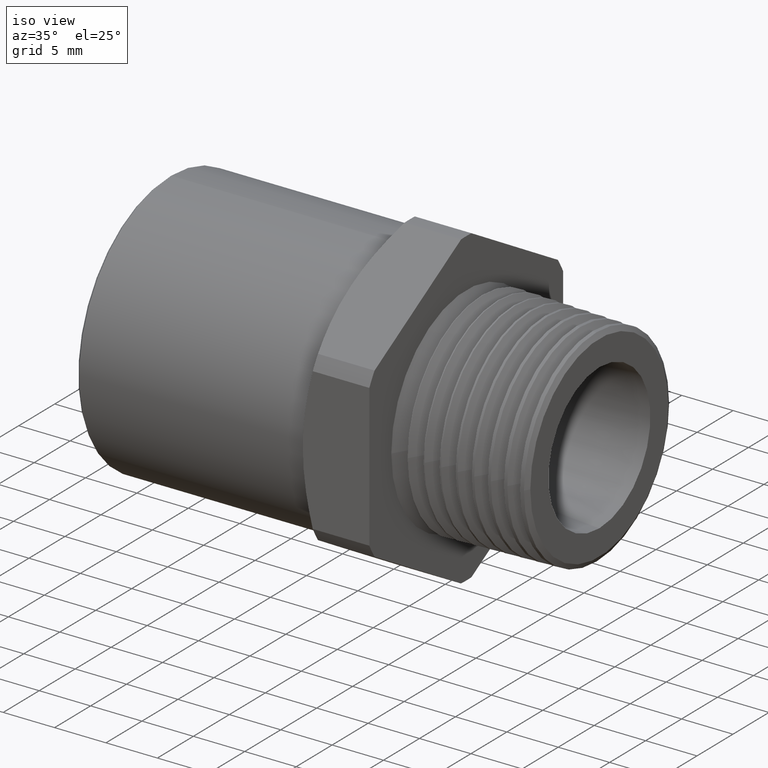
[diagram: clean part render]
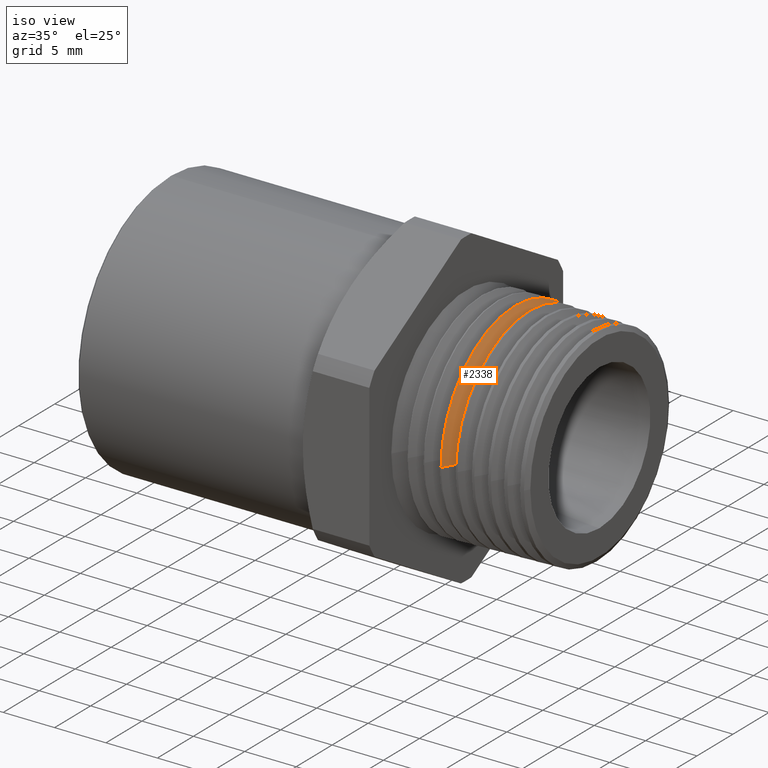
[diagram: same view with one face highlighted and labeled with its STEP entity id]
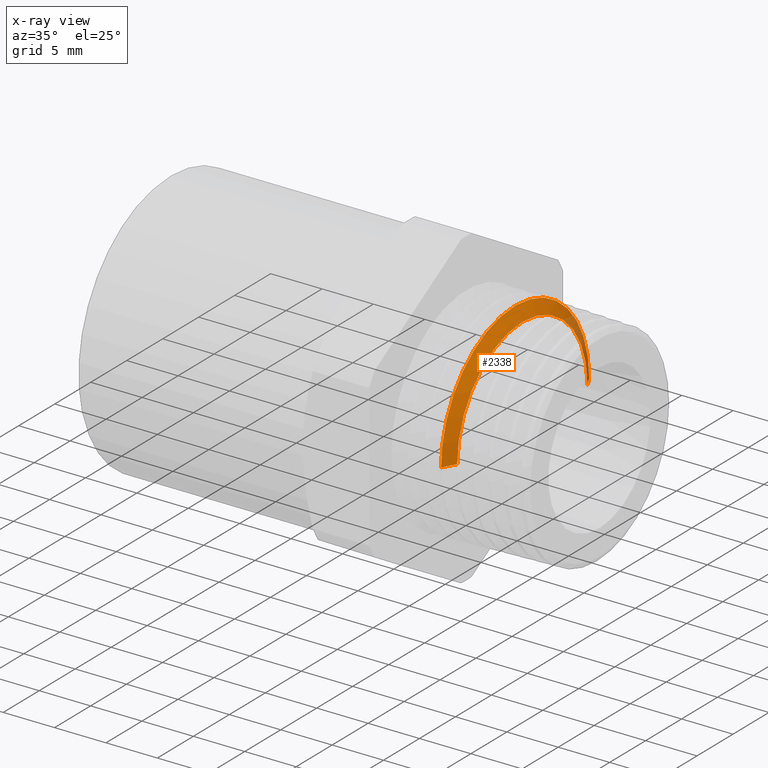
[diagram: x-ray of the same camera — body ghosted, the highlighted face saturated]
A machine part, iso view. The second image highlights one B-rep face of the part: STEP entity #2338.
The next image is the same camera in x-ray: the body ghosted, the highlighted face saturated — about 8% of this face is hidden behind the body in this view.
In plain terms, the highlighted conical surface has half-angle 60 deg.
Its self-contained STEP definition (entity closure, byte-faithful):
#1399 = CARTESIAN_POINT ( 'NONE',  ( -0.2949140921030081200, -0.3566524997823100100, 0.0000000000000000000 ) ) ;
#1401 = DIRECTION ( 'NONE',  ( 0.0000000000000000000, 1.000000000000000000, 0.0000000000000000000 ) ) ;
#1402 = DIRECTION ( 'NONE',  ( 1.000000000000000000, -3.789761643835506200E-017, 0.0000000000000000000 ) ) ;
#1403 = CARTESIAN_POINT ( 'NONE',  ( -0.2949140921030081200, -4.658719610180467900E-017, 0.0000000000000000000 ) ) ;
#1404 = AXIS2_PLACEMENT_3D ( 'NONE', #1403, #1402, #1401 ) ;
#1409 = CIRCLE ( 'NONE', #1404, 0.3566524997823099500 ) ;
#1421 = CARTESIAN_POINT ( 'NONE',  ( -0.2949140921030081200, 0.3566524997823099000, 4.664390222646195600E-017 ) ) ;
#1590 = FACE_OUTER_BOUND ( 'NONE', #2324, .T. ) ;
#1616 = DIRECTION ( 'NONE',  ( -1.000000000000000000, 0.0000000000000000000, 0.0000000000000000000 ) ) ;
#1617 = CARTESIAN_POINT ( 'NONE',  ( -0.3228854032510771200, -4.552715008063727400E-017, 0.0000000000000000000 ) ) ;
#1618 = AXIS2_PLACEMENT_3D ( 'NONE', #1617, #1616, #1676 ) ;
#1619 = CIRCLE ( 'NONE', #1618, 0.4051002318450826500 ) ;
#1621 = CARTESIAN_POINT ( 'NONE',  ( -0.3228854032510771200, -4.552715008063727400E-017, 0.4051002318450826500 ) ) ;
#1627 = DIRECTION ( 'NONE',  ( -0.5000000000000038900, 0.8660254037844362700, 1.060575238724903800E-016 ) ) ;
#1628 = VECTOR ( 'NONE', #1627, 39.37007874015748900 ) ;
#1629 = CARTESIAN_POINT ( 'NONE',  ( -0.3257142857142854600, 0.4099999999999999800, 5.021051876504149400E-017 ) ) ;
#1630 = LINE ( 'NONE', #1629, #1628 ) ;
#1631 = CARTESIAN_POINT ( 'NONE',  ( -0.3228854032510771200, 0.4051002318450825400, 4.961047022629311600E-017 ) ) ;
#1643 = DIRECTION ( 'NONE',  ( 0.0000000000000000000, -1.000000000000000000, 0.0000000000000000000 ) ) ;
#1644 = DIRECTION ( 'NONE',  ( -1.000000000000000000, 3.789761643835506200E-017, 0.0000000000000000000 ) ) ;
#1645 = CARTESIAN_POINT ( 'NONE',  ( -0.3257142857142854600, -4.541994217809741100E-017, 0.0000000000000000000 ) ) ;
#1646 = AXIS2_PLACEMENT_3D ( 'NONE', #1645, #1644, #1643 ) ;
#1647 = CONICAL_SURFACE ( 'NONE', #1646, 0.4100000000000000900, 1.047197551196593200 ) ;
#1651 = DIRECTION ( 'NONE',  ( -0.5000000000000038900, -0.8660254037844362700, 0.0000000000000000000 ) ) ;
#1652 = VECTOR ( 'NONE', #1651, 39.37007874015748900 ) ;
#1653 = CARTESIAN_POINT ( 'NONE',  ( -0.3257142857142854600, -0.4100000000000001400, 0.0000000000000000000 ) ) ;
#1654 = LINE ( 'NONE', #1653, #1652 ) ;
#1665 = DIRECTION ( 'NONE',  ( 0.0000000000000000000, 0.0000000000000000000, 1.000000000000000000 ) ) ;
#1666 = DIRECTION ( 'NONE',  ( -1.000000000000000000, 0.0000000000000000000, 0.0000000000000000000 ) ) ;
#1667 = CARTESIAN_POINT ( 'NONE',  ( -0.3228854032510771200, -4.552715008063727400E-017, 0.0000000000000000000 ) ) ;
#1668 = AXIS2_PLACEMENT_3D ( 'NONE', #1667, #1666, #1665 ) ;
#1669 = CIRCLE ( 'NONE', #1668, 0.4051002318450826500 ) ;
#1671 = CARTESIAN_POINT ( 'NONE',  ( -0.3228854032510771200, -0.4051002318450827000, 0.0000000000000000000 ) ) ;
#1676 = DIRECTION ( 'NONE',  ( 0.0000000000000000000, 0.0000000000000000000, 1.000000000000000000 ) ) ;
#2240 = ORIENTED_EDGE ( 'NONE', *, *, #2352, .T. ) ;
#2245 = EDGE_CURVE ( 'NONE', #2266, #2247, #1409, .T. ) ;
#2247 = VERTEX_POINT ( 'NONE', #1399 ) ;
#2266 = VERTEX_POINT ( 'NONE', #1421 ) ;
#2324 = EDGE_LOOP ( 'NONE', ( #2347, #2240, #2356, #2364, #2374 ) ) ;
#2338 = ADVANCED_FACE ( 'NONE', ( #1590 ), #1647, .T. ) ;
#2347 = ORIENTED_EDGE ( 'NONE', *, *, #2245, .F. ) ;
#2351 = VERTEX_POINT ( 'NONE', #1631 ) ;
#2352 = EDGE_CURVE ( 'NONE', #2266, #2351, #1630, .T. ) ;
#2356 = ORIENTED_EDGE ( 'NONE', *, *, #2359, .F. ) ;
#2357 = VERTEX_POINT ( 'NONE', #1621 ) ;
#2359 = EDGE_CURVE ( 'NONE', #2357, #2351, #1619, .T. ) ;
#2362 = VERTEX_POINT ( 'NONE', #1671 ) ;
#2363 = EDGE_CURVE ( 'NONE', #2362, #2357, #1669, .T. ) ;
#2364 = ORIENTED_EDGE ( 'NONE', *, *, #2363, .F. ) ;
#2370 = EDGE_CURVE ( 'NONE', #2247, #2362, #1654, .T. ) ;
#2374 = ORIENTED_EDGE ( 'NONE', *, *, #2370, .F. ) ;